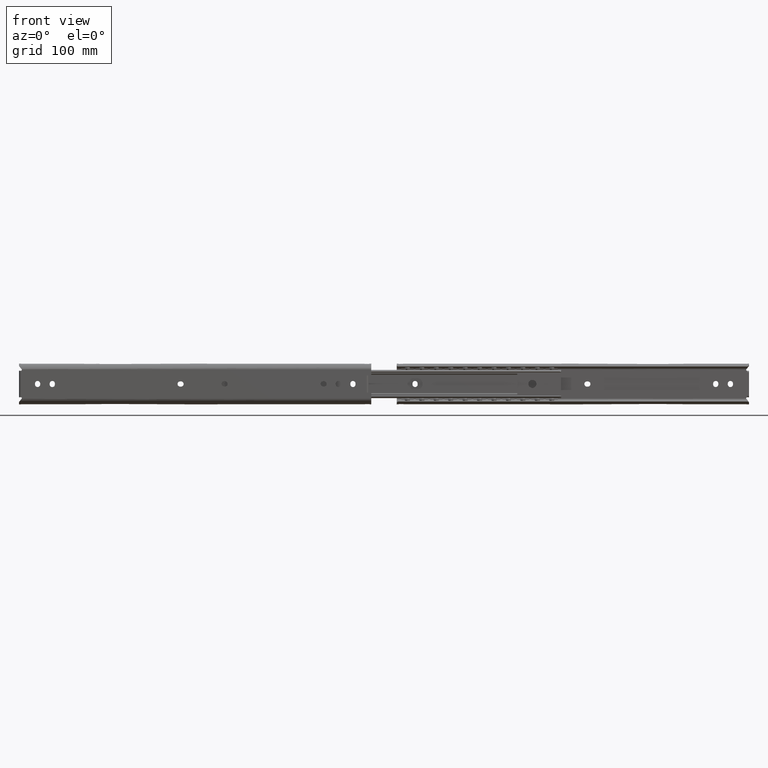
[diagram: clean part render]
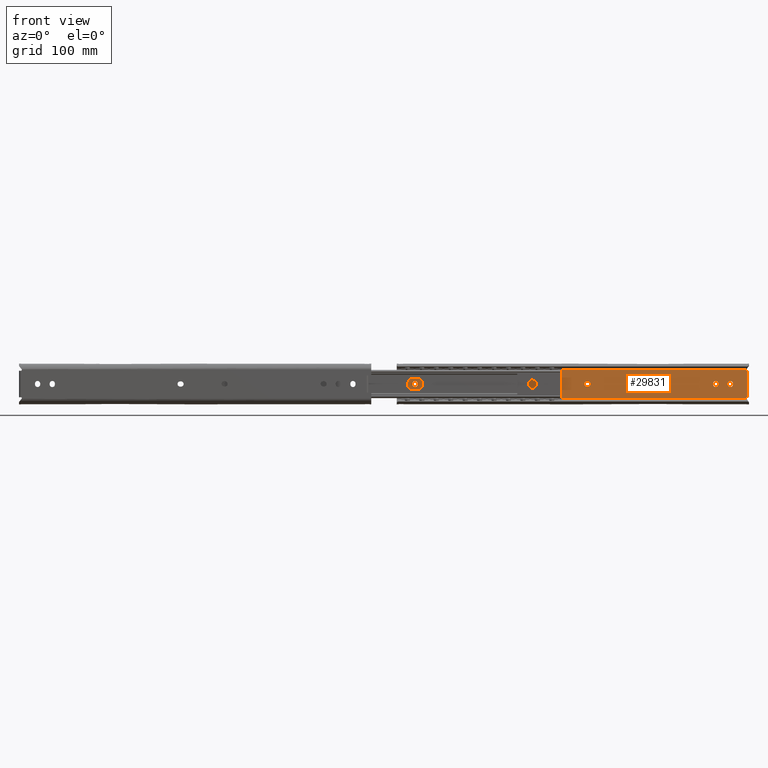
[diagram: same view with one face highlighted and labeled with its STEP entity id]
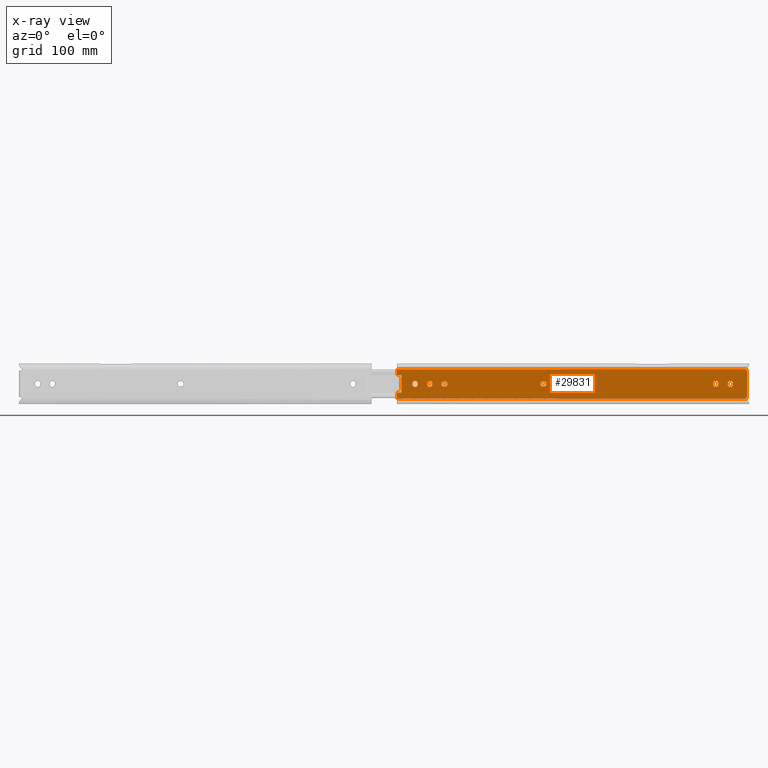
[diagram: x-ray of the same camera — body ghosted, the highlighted face saturated]
A machine part, front view. The second image highlights one B-rep face of the part: STEP entity #29831.
The next image is the same camera in x-ray: the body ghosted, the highlighted face saturated — about 0% of this face is hidden behind the body in this view.
In plain terms, the highlighted face is a freeform B-spline surface patch.
Its self-contained STEP definition (entity closure, byte-faithful):
#26468=CARTESIAN_POINT('',(-263.300000000000010,-1.599999999999795,2.250000000000000));
#26469=VERTEX_POINT('',#26468);
#26475=CARTESIAN_POINT('',(-264.100000000000020,-1.599999999999825,2.250000000000000));
#26476=VERTEX_POINT('',#26475);
#26477=CARTESIAN_POINT('',(-264.100000000000020,-1.599999999999825,2.250000000000000));
#26478=CARTESIAN_POINT('',(-263.300000000000010,-1.599999999999795,2.250000000000000));
#26479=QUASI_UNIFORM_CURVE('',1,(#26477,#26478),.UNSPECIFIED.,.F.,.U.);
#26480=EDGE_CURVE('',#26476,#26469,#26479,.T.);
#26525=CARTESIAN_POINT('',(-263.300000000000010,-1.599999999999825,-2.250000000000000));
#26526=VERTEX_POINT('',#26525);
#26532=CARTESIAN_POINT('',(-263.300000000000010,-1.599999999999825,-2.250000000000000));
#26533=CARTESIAN_POINT('',(-261.050000000000010,-1.599999999999825,-2.250000000000000));
#26534=CARTESIAN_POINT('',(-261.050000000000010,-1.599999999999825,0.0));
#26535=CARTESIAN_POINT('',(-261.050000000000010,-1.599999999999825,2.250000000000000));
#26536=CARTESIAN_POINT('',(-263.300000000000010,-1.599999999999825,2.250000000000000));
#26544=(BOUNDED_CURVE()B_SPLINE_CURVE(2,(#26532,#26533,#26534,#26535,#26536),.UNSPECIFIED.,.F.,.U.)B_SPLINE_CURVE_WITH_KNOTS((3,2,3),(0.0,0.500000000000000,1.0),.UNSPECIFIED.)CURVE()GEOMETRIC_REPRESENTATION_ITEM()RATIONAL_B_SPLINE_CURVE((1.0,0.707106781186547,1.0,0.707106781186547,1.0))REPRESENTATION_ITEM(''));
#26545=EDGE_CURVE('',#26526,#26469,#26544,.T.);
#26563=CARTESIAN_POINT('',(-264.100000000000020,-1.599999999999825,-2.250000000000000));
#26564=VERTEX_POINT('',#26563);
#26570=CARTESIAN_POINT('',(-263.300000000000010,-1.599999999999825,-2.250000000000000));
#26571=CARTESIAN_POINT('',(-264.100000000000020,-1.599999999999825,-2.250000000000000));
#26572=QUASI_UNIFORM_CURVE('',1,(#26570,#26571),.UNSPECIFIED.,.F.,.U.);
#26573=EDGE_CURVE('',#26526,#26564,#26572,.T.);
#26613=CARTESIAN_POINT('',(-264.100000000000020,-1.599999999999825,2.250000000000000));
#26614=CARTESIAN_POINT('',(-266.349999999999970,-1.599999999999825,2.250000000000000));
#26615=CARTESIAN_POINT('',(-266.350000000000020,-1.599999999999825,0.0));
#26616=CARTESIAN_POINT('',(-266.349999999999970,-1.599999999999825,-2.250000000000000));
#26617=CARTESIAN_POINT('',(-264.100000000000020,-1.599999999999825,-2.250000000000000));
#26625=(BOUNDED_CURVE()B_SPLINE_CURVE(2,(#26613,#26614,#26615,#26616,#26617),.UNSPECIFIED.,.F.,.U.)B_SPLINE_CURVE_WITH_KNOTS((3,2,3),(0.0,0.500000000000000,1.0),.UNSPECIFIED.)CURVE()GEOMETRIC_REPRESENTATION_ITEM()RATIONAL_B_SPLINE_CURVE((1.0,0.707106781186547,1.0,0.707106781186547,1.0))REPRESENTATION_ITEM(''));
#26626=EDGE_CURVE('',#26476,#26564,#26625,.T.);
#26669=CARTESIAN_POINT('',(-278.649999999999980,-1.599999999999825,-0.400000000000205));
#26670=VERTEX_POINT('',#26669);
#26676=CARTESIAN_POINT('',(-274.149999999999980,-1.599999999999825,-0.400000000000205));
#26677=VERTEX_POINT('',#26676);
#26678=CARTESIAN_POINT('',(-278.649999999999980,-1.599999999999825,-0.400000000000205));
#26679=CARTESIAN_POINT('',(-278.649999999999920,-1.599999999999825,-2.650000000000204));
#26680=CARTESIAN_POINT('',(-276.399999999999980,-1.599999999999825,-2.650000000000204));
#26681=CARTESIAN_POINT('',(-274.149999999999980,-1.599999999999825,-2.650000000000204));
#26682=CARTESIAN_POINT('',(-274.149999999999980,-1.599999999999825,-0.400000000000205));
#26690=(BOUNDED_CURVE()B_SPLINE_CURVE(2,(#26678,#26679,#26680,#26681,#26682),.UNSPECIFIED.,.F.,.U.)B_SPLINE_CURVE_WITH_KNOTS((3,2,3),(0.0,0.500000000000000,1.0),.UNSPECIFIED.)CURVE()GEOMETRIC_REPRESENTATION_ITEM()RATIONAL_B_SPLINE_CURVE((1.0,0.707106781186547,1.0,0.707106781186547,1.0))REPRESENTATION_ITEM(''));
#26691=EDGE_CURVE('',#26670,#26677,#26690,.T.);
#26714=CARTESIAN_POINT('',(-274.149999999999980,-1.599999999999825,0.399999999999807));
#26715=VERTEX_POINT('',#26714);
#26716=CARTESIAN_POINT('',(-274.149999999999980,-1.599999999999825,0.399999999999807));
#26717=CARTESIAN_POINT('',(-274.149999999999980,-1.599999999999825,-0.400000000000205));
#26718=QUASI_UNIFORM_CURVE('',1,(#26716,#26717),.UNSPECIFIED.,.F.,.U.);
#26719=EDGE_CURVE('',#26715,#26677,#26718,.T.);
#26765=CARTESIAN_POINT('',(-278.649999999999980,-1.599999999999825,0.399999999999807));
#26766=VERTEX_POINT('',#26765);
#26767=CARTESIAN_POINT('',(-274.149999999999980,-1.599999999999825,0.399999999999807));
#26768=CARTESIAN_POINT('',(-274.149999999999980,-1.599999999999825,2.649999999999807));
#26769=CARTESIAN_POINT('',(-276.399999999999980,-1.599999999999825,2.649999999999806));
#26770=CARTESIAN_POINT('',(-278.649999999999920,-1.599999999999825,2.649999999999807));
#26771=CARTESIAN_POINT('',(-278.649999999999980,-1.599999999999825,0.399999999999807));
#26779=(BOUNDED_CURVE()B_SPLINE_CURVE(2,(#26767,#26768,#26769,#26770,#26771),.UNSPECIFIED.,.F.,.U.)B_SPLINE_CURVE_WITH_KNOTS((3,2,3),(0.0,0.500000000000000,1.0),.UNSPECIFIED.)CURVE()GEOMETRIC_REPRESENTATION_ITEM()RATIONAL_B_SPLINE_CURVE((1.0,0.707106781186547,1.0,0.707106781186547,1.0))REPRESENTATION_ITEM(''));
#26780=EDGE_CURVE('',#26715,#26766,#26779,.T.);
#26801=CARTESIAN_POINT('',(-278.649999999999980,-1.599999999999825,-0.400000000000205));
#26802=CARTESIAN_POINT('',(-278.649999999999980,-1.599999999999825,0.399999999999807));
#26803=QUASI_UNIFORM_CURVE('',1,(#26801,#26802),.UNSPECIFIED.,.F.,.U.);
#26804=EDGE_CURVE('',#26670,#26766,#26803,.T.);
#26824=CARTESIAN_POINT('',(-291.350000000000020,-1.599999999999795,0.400000000000007));
#26825=VERTEX_POINT('',#26824);
#26831=CARTESIAN_POINT('',(-291.350000000000020,-1.599999999999825,-0.400000000000091));
#26832=VERTEX_POINT('',#26831);
#26833=CARTESIAN_POINT('',(-291.350000000000020,-1.599999999999795,0.400000000000007));
#26834=CARTESIAN_POINT('',(-291.350000000000020,-1.599999999999825,-0.400000000000091));
#26835=QUASI_UNIFORM_CURVE('',1,(#26833,#26834),.UNSPECIFIED.,.F.,.U.);
#26836=EDGE_CURVE('',#26825,#26832,#26835,.T.);
#26881=CARTESIAN_POINT('',(-286.850000000000020,-1.599999999999825,0.400000000000006));
#26882=VERTEX_POINT('',#26881);
#26888=CARTESIAN_POINT('',(-286.850000000000020,-1.599999999999825,0.400000000000006));
#26889=CARTESIAN_POINT('',(-286.850000000000080,-1.599999999999825,2.650000000000006));
#26890=CARTESIAN_POINT('',(-289.100000000000020,-1.599999999999825,2.650000000000005));
#26891=CARTESIAN_POINT('',(-291.349999999999970,-1.599999999999825,2.650000000000006));
#26892=CARTESIAN_POINT('',(-291.350000000000020,-1.599999999999825,0.400000000000006));
#26900=(BOUNDED_CURVE()B_SPLINE_CURVE(2,(#26888,#26889,#26890,#26891,#26892),.UNSPECIFIED.,.F.,.U.)B_SPLINE_CURVE_WITH_KNOTS((3,2,3),(0.0,0.500000000000000,1.0),.UNSPECIFIED.)CURVE()GEOMETRIC_REPRESENTATION_ITEM()RATIONAL_B_SPLINE_CURVE((1.0,0.707106781186547,1.0,0.707106781186547,1.0))REPRESENTATION_ITEM(''));
#26901=EDGE_CURVE('',#26882,#26825,#26900,.T.);
#26919=CARTESIAN_POINT('',(-286.850000000000020,-1.599999999999825,-0.400000000000091));
#26920=VERTEX_POINT('',#26919);
#26926=CARTESIAN_POINT('',(-286.850000000000020,-1.599999999999825,-0.400000000000091));
#26927=CARTESIAN_POINT('',(-286.850000000000020,-1.599999999999825,0.400000000000006));
#26928=QUASI_UNIFORM_CURVE('',1,(#26926,#26927),.UNSPECIFIED.,.F.,.U.);
#26929=EDGE_CURVE('',#26920,#26882,#26928,.T.);
#26969=CARTESIAN_POINT('',(-291.350000000000020,-1.599999999999825,-0.400000000000091));
#26970=CARTESIAN_POINT('',(-291.349999999999970,-1.599999999999825,-2.650000000000091));
#26971=CARTESIAN_POINT('',(-289.100000000000020,-1.599999999999825,-2.650000000000091));
#26972=CARTESIAN_POINT('',(-286.850000000000080,-1.599999999999825,-2.650000000000091));
#26973=CARTESIAN_POINT('',(-286.850000000000020,-1.599999999999825,-0.400000000000091));
#26981=(BOUNDED_CURVE()B_SPLINE_CURVE(2,(#26969,#26970,#26971,#26972,#26973),.UNSPECIFIED.,.F.,.U.)B_SPLINE_CURVE_WITH_KNOTS((3,2,3),(0.0,0.500000000000000,1.0),.UNSPECIFIED.)CURVE()GEOMETRIC_REPRESENTATION_ITEM()RATIONAL_B_SPLINE_CURVE((1.0,0.707106781186547,1.0,0.707106781186547,1.0))REPRESENTATION_ITEM(''));
#26982=EDGE_CURVE('',#26832,#26920,#26981,.T.);
#26993=CARTESIAN_POINT('',(-177.599999999999990,-1.599999999999825,-2.250000000000200));
#26994=VERTEX_POINT('',#26993);
#27009=CARTESIAN_POINT('',(-178.400000000000010,-1.599999999999795,-2.250000000000200));
#27010=VERTEX_POINT('',#27009);
#27016=CARTESIAN_POINT('',(-177.599999999999990,-1.599999999999825,-2.250000000000200));
#27017=CARTESIAN_POINT('',(-178.400000000000010,-1.599999999999795,-2.250000000000200));
#27018=QUASI_UNIFORM_CURVE('',1,(#27016,#27017),.UNSPECIFIED.,.F.,.U.);
#27019=EDGE_CURVE('',#26994,#27010,#27018,.T.);
#27060=CARTESIAN_POINT('',(-178.400000000000010,-1.599999999999825,2.250000000000000));
#27061=VERTEX_POINT('',#27060);
#27067=CARTESIAN_POINT('',(-178.400000000000010,-1.599999999999825,-2.250000000000000));
#27068=CARTESIAN_POINT('',(-180.650000000000010,-1.599999999999825,-2.250000000000000));
#27069=CARTESIAN_POINT('',(-180.650000000000010,-1.599999999999825,0.0));
#27070=CARTESIAN_POINT('',(-180.650000000000010,-1.599999999999825,2.250000000000000));
#27071=CARTESIAN_POINT('',(-178.400000000000010,-1.599999999999825,2.250000000000000));
#27079=(BOUNDED_CURVE()B_SPLINE_CURVE(2,(#27067,#27068,#27069,#27070,#27071),.UNSPECIFIED.,.F.,.U.)B_SPLINE_CURVE_WITH_KNOTS((3,2,3),(0.0,0.500000000000000,1.0),.UNSPECIFIED.)CURVE()GEOMETRIC_REPRESENTATION_ITEM()RATIONAL_B_SPLINE_CURVE((1.0,0.707106781186547,1.0,0.707106781186547,1.0))REPRESENTATION_ITEM(''));
#27080=EDGE_CURVE('',#27010,#27061,#27079,.T.);
#27098=CARTESIAN_POINT('',(-177.599999999999990,-1.599999999999825,2.250000000000000));
#27099=VERTEX_POINT('',#27098);
#27105=CARTESIAN_POINT('',(-178.400000000000010,-1.599999999999825,2.250000000000000));
#27106=CARTESIAN_POINT('',(-177.599999999999990,-1.599999999999825,2.250000000000000));
#27107=QUASI_UNIFORM_CURVE('',1,(#27105,#27106),.UNSPECIFIED.,.F.,.U.);
#27108=EDGE_CURVE('',#27061,#27099,#27107,.T.);
#27148=CARTESIAN_POINT('',(-177.599999999999990,-1.599999999999825,2.250000000000000));
#27149=CARTESIAN_POINT('',(-175.350000000000020,-1.599999999999825,2.250000000000000));
#27150=CARTESIAN_POINT('',(-175.349999999999990,-1.599999999999825,0.0));
#27151=CARTESIAN_POINT('',(-175.350000000000020,-1.599999999999825,-2.250000000000000));
#27152=CARTESIAN_POINT('',(-177.599999999999990,-1.599999999999825,-2.250000000000000));
#27160=(BOUNDED_CURVE()B_SPLINE_CURVE(2,(#27148,#27149,#27150,#27151,#27152),.UNSPECIFIED.,.F.,.U.)B_SPLINE_CURVE_WITH_KNOTS((3,2,3),(0.0,0.500000000000000,1.0),.UNSPECIFIED.)CURVE()GEOMETRIC_REPRESENTATION_ITEM()RATIONAL_B_SPLINE_CURVE((1.0,0.707106781186547,1.0,0.707106781186547,1.0))REPRESENTATION_ITEM(''));
#27161=EDGE_CURVE('',#27099,#26994,#27160,.T.);
#27171=CARTESIAN_POINT('',(-140.300000000000010,-1.599999999999825,2.250000000000000));
#27172=VERTEX_POINT('',#27171);
#27187=CARTESIAN_POINT('',(-139.500000000000000,-1.599999999999795,2.250000000000000));
#27188=VERTEX_POINT('',#27187);
#27194=CARTESIAN_POINT('',(-140.300000000000010,-1.599999999999825,2.250000000000000));
#27195=CARTESIAN_POINT('',(-139.500000000000000,-1.599999999999795,2.250000000000000));
#27196=QUASI_UNIFORM_CURVE('',1,(#27194,#27195),.UNSPECIFIED.,.F.,.U.);
#27197=EDGE_CURVE('',#27172,#27188,#27196,.T.);
#27238=CARTESIAN_POINT('',(-139.500000000000000,-1.599999999999825,-2.250000000000200));
#27239=VERTEX_POINT('',#27238);
#27245=CARTESIAN_POINT('',(-139.500000000000000,-1.599999999999825,2.250000000000000));
#27246=CARTESIAN_POINT('',(-137.250000000000000,-1.599999999999825,2.250000000000000));
#27247=CARTESIAN_POINT('',(-137.250000000000000,-1.599999999999825,0.0));
#27248=CARTESIAN_POINT('',(-137.250000000000000,-1.599999999999825,-2.250000000000000));
#27249=CARTESIAN_POINT('',(-139.500000000000000,-1.599999999999825,-2.250000000000000));
#27257=(BOUNDED_CURVE()B_SPLINE_CURVE(2,(#27245,#27246,#27247,#27248,#27249),.UNSPECIFIED.,.F.,.U.)B_SPLINE_CURVE_WITH_KNOTS((3,2,3),(0.0,0.500000000000000,1.0),.UNSPECIFIED.)CURVE()GEOMETRIC_REPRESENTATION_ITEM()RATIONAL_B_SPLINE_CURVE((1.0,0.707106781186547,1.0,0.707106781186547,1.0))REPRESENTATION_ITEM(''));
#27258=EDGE_CURVE('',#27188,#27239,#27257,.T.);
#27276=CARTESIAN_POINT('',(-140.300000000000010,-1.599999999999825,-2.250000000000200));
#27277=VERTEX_POINT('',#27276);
#27283=CARTESIAN_POINT('',(-139.500000000000000,-1.599999999999825,-2.250000000000200));
#27284=CARTESIAN_POINT('',(-140.300000000000010,-1.599999999999825,-2.250000000000200));
#27285=QUASI_UNIFORM_CURVE('',1,(#27283,#27284),.UNSPECIFIED.,.F.,.U.);
#27286=EDGE_CURVE('',#27239,#27277,#27285,.T.);
#27326=CARTESIAN_POINT('',(-140.300000000000010,-1.599999999999825,-2.250000000000000));
#27327=CARTESIAN_POINT('',(-142.550000000000100,-1.599999999999825,-2.250000000000000));
#27328=CARTESIAN_POINT('',(-142.550000000000010,-1.599999999999825,0.0));
#27329=CARTESIAN_POINT('',(-142.550000000000100,-1.599999999999825,2.250000000000000));
#27330=CARTESIAN_POINT('',(-140.300000000000010,-1.599999999999825,2.250000000000000));
#27338=(BOUNDED_CURVE()B_SPLINE_CURVE(2,(#27326,#27327,#27328,#27329,#27330),.UNSPECIFIED.,.F.,.U.)B_SPLINE_CURVE_WITH_KNOTS((3,2,3),(0.0,0.500000000000000,1.0),.UNSPECIFIED.)CURVE()GEOMETRIC_REPRESENTATION_ITEM()RATIONAL_B_SPLINE_CURVE((1.0,0.707106781186547,1.0,0.707106781186547,1.0))REPRESENTATION_ITEM(''));
#27339=EDGE_CURVE('',#27277,#27172,#27338,.T.);
#27362=CARTESIAN_POINT('',(-18.350000000000250,-1.599999999999825,0.400000000000006));
#27363=VERTEX_POINT('',#27362);
#27388=CARTESIAN_POINT('',(-13.850000000000239,-1.599999999999825,0.400000000000006));
#27389=VERTEX_POINT('',#27388);
#27395=CARTESIAN_POINT('',(-18.350000000000250,-1.599999999999825,0.400000000000006));
#27396=CARTESIAN_POINT('',(-18.350000000000247,-1.599999999999825,2.650000000000006));
#27397=CARTESIAN_POINT('',(-16.100000000000250,-1.599999999999825,2.650000000000005));
#27398=CARTESIAN_POINT('',(-13.850000000000250,-1.599999999999825,2.650000000000006));
#27399=CARTESIAN_POINT('',(-13.850000000000250,-1.599999999999825,0.400000000000006));
#27407=(BOUNDED_CURVE()B_SPLINE_CURVE(2,(#27395,#27396,#27397,#27398,#27399),.UNSPECIFIED.,.F.,.U.)B_SPLINE_CURVE_WITH_KNOTS((3,2,3),(0.0,0.500000000000000,1.0),.UNSPECIFIED.)CURVE()GEOMETRIC_REPRESENTATION_ITEM()RATIONAL_B_SPLINE_CURVE((1.0,0.707106781186547,1.0,0.707106781186547,1.0))REPRESENTATION_ITEM(''));
#27408=EDGE_CURVE('',#27363,#27389,#27407,.T.);
#27418=CARTESIAN_POINT('',(-18.350000000000250,-1.599999999999825,-0.400000000000091));
#27419=VERTEX_POINT('',#27418);
#27420=CARTESIAN_POINT('',(-18.350000000000250,-1.599999999999825,0.400000000000006));
#27421=CARTESIAN_POINT('',(-18.350000000000250,-1.599999999999825,-0.400000000000091));
#27422=QUASI_UNIFORM_CURVE('',1,(#27420,#27421),.UNSPECIFIED.,.F.,.U.);
#27423=EDGE_CURVE('',#27363,#27419,#27422,.T.);
#27459=CARTESIAN_POINT('',(-13.850000000000239,-1.599999999999825,-0.400000000000091));
#27460=VERTEX_POINT('',#27459);
#27484=CARTESIAN_POINT('',(-13.850000000000250,-1.599999999999825,-0.400000000000091));
#27485=CARTESIAN_POINT('',(-13.850000000000250,-1.599999999999825,-2.650000000000091));
#27486=CARTESIAN_POINT('',(-16.100000000000250,-1.599999999999825,-2.650000000000091));
#27487=CARTESIAN_POINT('',(-18.350000000000247,-1.599999999999825,-2.650000000000091));
#27488=CARTESIAN_POINT('',(-18.350000000000250,-1.599999999999825,-0.400000000000091));
#27496=(BOUNDED_CURVE()B_SPLINE_CURVE(2,(#27484,#27485,#27486,#27487,#27488),.UNSPECIFIED.,.F.,.U.)B_SPLINE_CURVE_WITH_KNOTS((3,2,3),(0.0,0.500000000000000,1.0),.UNSPECIFIED.)CURVE()GEOMETRIC_REPRESENTATION_ITEM()RATIONAL_B_SPLINE_CURVE((1.0,0.707106781186547,1.0,0.707106781186547,1.0))REPRESENTATION_ITEM(''));
#27497=EDGE_CURVE('',#27460,#27419,#27496,.T.);
#27507=CARTESIAN_POINT('',(-13.850000000000239,-1.599999999999825,-0.400000000000091));
#27508=CARTESIAN_POINT('',(-13.850000000000239,-1.599999999999825,0.400000000000006));
#27509=QUASI_UNIFORM_CURVE('',1,(#27507,#27508),.UNSPECIFIED.,.F.,.U.);
#27510=EDGE_CURVE('',#27460,#27389,#27509,.T.);
#27527=CARTESIAN_POINT('',(-26.550000000000001,-1.599999999999825,0.400000000000006));
#27528=VERTEX_POINT('',#27527);
#27543=CARTESIAN_POINT('',(-26.550000000000001,-1.599999999999795,-0.400000000000092));
#27544=VERTEX_POINT('',#27543);
#27550=CARTESIAN_POINT('',(-26.550000000000001,-1.599999999999825,0.400000000000006));
#27551=CARTESIAN_POINT('',(-26.550000000000001,-1.599999999999795,-0.400000000000092));
#27552=QUASI_UNIFORM_CURVE('',1,(#27550,#27551),.UNSPECIFIED.,.F.,.U.);
#27553=EDGE_CURVE('',#27528,#27544,#27552,.T.);
#27594=CARTESIAN_POINT('',(-31.050000000000001,-1.599999999999825,-0.400000000000091));
#27595=VERTEX_POINT('',#27594);
#27601=CARTESIAN_POINT('',(-26.550000000000001,-1.599999999999825,-0.400000000000091));
#27602=CARTESIAN_POINT('',(-26.550000000000008,-1.599999999999825,-2.650000000000091));
#27603=CARTESIAN_POINT('',(-28.800000000000001,-1.599999999999825,-2.650000000000091));
#27604=CARTESIAN_POINT('',(-31.050000000000004,-1.599999999999825,-2.650000000000091));
#27605=CARTESIAN_POINT('',(-31.050000000000001,-1.599999999999825,-0.400000000000091));
#27613=(BOUNDED_CURVE()B_SPLINE_CURVE(2,(#27601,#27602,#27603,#27604,#27605),.UNSPECIFIED.,.F.,.U.)B_SPLINE_CURVE_WITH_KNOTS((3,2,3),(0.0,0.500000000000000,1.0),.UNSPECIFIED.)CURVE()GEOMETRIC_REPRESENTATION_ITEM()RATIONAL_B_SPLINE_CURVE((1.0,0.707106781186547,1.0,0.707106781186547,1.0))REPRESENTATION_ITEM(''));
#27614=EDGE_CURVE('',#27544,#27595,#27613,.T.);
#27632=CARTESIAN_POINT('',(-31.050000000000001,-1.599999999999825,0.400000000000006));
#27633=VERTEX_POINT('',#27632);
#27639=CARTESIAN_POINT('',(-31.050000000000001,-1.599999999999825,-0.400000000000091));
#27640=CARTESIAN_POINT('',(-31.050000000000001,-1.599999999999825,0.400000000000006));
#27641=QUASI_UNIFORM_CURVE('',1,(#27639,#27640),.UNSPECIFIED.,.F.,.U.);
#27642=EDGE_CURVE('',#27595,#27633,#27641,.T.);
#27682=CARTESIAN_POINT('',(-31.050000000000001,-1.599999999999825,0.400000000000006));
#27683=CARTESIAN_POINT('',(-31.050000000000004,-1.599999999999825,2.650000000000006));
#27684=CARTESIAN_POINT('',(-28.800000000000001,-1.599999999999825,2.650000000000005));
#27685=CARTESIAN_POINT('',(-26.550000000000008,-1.599999999999825,2.650000000000006));
#27686=CARTESIAN_POINT('',(-26.550000000000001,-1.599999999999825,0.400000000000006));
#27694=(BOUNDED_CURVE()B_SPLINE_CURVE(2,(#27682,#27683,#27684,#27685,#27686),.UNSPECIFIED.,.F.,.U.)B_SPLINE_CURVE_WITH_KNOTS((3,2,3),(0.0,0.500000000000000,1.0),.UNSPECIFIED.)CURVE()GEOMETRIC_REPRESENTATION_ITEM()RATIONAL_B_SPLINE_CURVE((1.0,0.707106781186547,1.0,0.707106781186547,1.0))REPRESENTATION_ITEM(''));
#27695=EDGE_CURVE('',#27633,#27528,#27694,.T.);
#28151=CARTESIAN_POINT('',(-302.500000000000000,-1.599999999999825,-7.500000000000200));
#28152=VERTEX_POINT('',#28151);
#28168=CARTESIAN_POINT('',(-302.500000000000000,-1.599999999999825,7.500000000000000));
#28169=VERTEX_POINT('',#28168);
#28205=CARTESIAN_POINT('',(-300.899999999999980,-1.599999999999795,-7.500000000000200));
#28206=VERTEX_POINT('',#28205);
#28212=CARTESIAN_POINT('',(-300.899999999999980,-1.599999999999795,7.500000000000000));
#28213=VERTEX_POINT('',#28212);
#28214=CARTESIAN_POINT('',(-300.899999999999980,-1.599999999999795,-7.500000000000200));
#28215=CARTESIAN_POINT('',(-300.899999999999980,-1.599999999999795,7.500000000000000));
#28216=QUASI_UNIFORM_CURVE('',1,(#28214,#28215),.UNSPECIFIED.,.F.,.U.);
#28217=EDGE_CURVE('',#28206,#28213,#28216,.T.);
#28239=CARTESIAN_POINT('',(-300.899999999999980,-1.599999999999795,-7.500000000000200));
#28240=CARTESIAN_POINT('',(-302.500000000000000,-1.599999999999825,-7.500000000000200));
#28241=QUASI_UNIFORM_CURVE('',1,(#28239,#28240),.UNSPECIFIED.,.F.,.U.);
#28242=EDGE_CURVE('',#28206,#28152,#28241,.T.);
#28287=CARTESIAN_POINT('',(-302.500000000000000,-1.599999999999825,7.500000000000000));
#28288=CARTESIAN_POINT('',(-300.899999999999980,-1.599999999999795,7.500000000000000));
#28289=QUASI_UNIFORM_CURVE('',1,(#28287,#28288),.UNSPECIFIED.,.F.,.U.);
#28290=EDGE_CURVE('',#28169,#28213,#28289,.T.);
#28315=CARTESIAN_POINT('',(-305.0,-1.599999999999795,7.500000000000000));
#28316=VERTEX_POINT('',#28315);
#28317=CARTESIAN_POINT('',(-302.500000000000000,-1.599999999999825,7.500000000000000));
#28318=CARTESIAN_POINT('',(-305.0,-1.599999999999795,7.500000000000000));
#28319=QUASI_UNIFORM_CURVE('',1,(#28317,#28318),.UNSPECIFIED.,.F.,.U.);
#28320=EDGE_CURVE('',#28169,#28316,#28319,.T.);
#28354=CARTESIAN_POINT('',(-305.0,-1.599999999999825,-7.500000000000200));
#28355=VERTEX_POINT('',#28354);
#28361=CARTESIAN_POINT('',(-305.0,-1.599999999999825,-7.500000000000200));
#28362=CARTESIAN_POINT('',(-302.500000000000000,-1.599999999999825,-7.500000000000200));
#28363=QUASI_UNIFORM_CURVE('',1,(#28361,#28362),.UNSPECIFIED.,.F.,.U.);
#28364=EDGE_CURVE('',#28355,#28152,#28363,.T.);
#28375=CARTESIAN_POINT('',(-1.600000000000045,-1.599999999999825,-11.500000000000000));
#28376=VERTEX_POINT('',#28375);
#28377=CARTESIAN_POINT('',(-1.600000000000025,-1.599999999999825,11.500000000000000));
#28378=VERTEX_POINT('',#28377);
#28379=CARTESIAN_POINT('',(-1.600000000000045,-1.599999999999825,-11.500000000000000));
#28380=CARTESIAN_POINT('',(-1.600000000000025,-1.599999999999825,11.500000000000000));
#28381=QUASI_UNIFORM_CURVE('',1,(#28379,#28380),.UNSPECIFIED.,.F.,.U.);
#28382=EDGE_CURVE('',#28376,#28378,#28381,.T.);
#28577=CARTESIAN_POINT('',(-2.360134746260215,-1.600000000000045,-12.578916000000000));
#28578=VERTEX_POINT('',#28577);
#28622=CARTESIAN_POINT('',(-2.360134746260215,-1.600000000000045,-12.578916000000000));
#28623=CARTESIAN_POINT('',(-2.501066018639444,-1.599999999999826,-12.184613891433406));
#28624=CARTESIAN_POINT('',(-2.259898584543139,-1.599999999999825,-11.842306945716709));
#28625=CARTESIAN_POINT('',(-2.018731150446826,-1.599999999999826,-11.499999999999995));
#28626=CARTESIAN_POINT('',(-1.600000000000025,-1.599999999999825,-11.500000000000000));
#28634=(BOUNDED_CURVE()B_SPLINE_CURVE(2,(#28622,#28623,#28624,#28625,#28626),.UNSPECIFIED.,.F.,.U.)B_SPLINE_CURVE_WITH_KNOTS((3,2,3),(0.0,0.500000000000000,1.0),.UNSPECIFIED.)CURVE()GEOMETRIC_REPRESENTATION_ITEM()RATIONAL_B_SPLINE_CURVE((1.0,0.887679040060800,1.0,0.887679040060800,1.0))REPRESENTATION_ITEM(''));
#28635=EDGE_CURVE('',#28578,#28376,#28634,.T.);
#29047=CARTESIAN_POINT('',(-2.360134746260220,-1.599999999999825,12.578915999999900));
#29048=VERTEX_POINT('',#29047);
#29056=CARTESIAN_POINT('',(-1.600000000000025,-1.599999999999825,11.500000000000000));
#29057=CARTESIAN_POINT('',(-2.018731150446789,-1.599999999999825,11.499999999999998));
#29058=CARTESIAN_POINT('',(-2.259898584543105,-1.599999999999825,11.842306945716659));
#29059=CARTESIAN_POINT('',(-2.501066018639421,-1.599999999999825,12.184613891433322));
#29060=CARTESIAN_POINT('',(-2.360134746260222,-1.599999999999825,12.578915999999900));
#29068=(BOUNDED_CURVE()B_SPLINE_CURVE(2,(#29056,#29057,#29058,#29059,#29060),.UNSPECIFIED.,.F.,.U.)B_SPLINE_CURVE_WITH_KNOTS((3,2,3),(0.0,0.500000000000000,1.0),.UNSPECIFIED.)CURVE()GEOMETRIC_REPRESENTATION_ITEM()RATIONAL_B_SPLINE_CURVE((1.0,0.887679040060811,1.0,0.887679040060811,1.0))REPRESENTATION_ITEM(''));
#29069=EDGE_CURVE('',#28378,#29048,#29068,.T.);
#29541=CARTESIAN_POINT('',(-305.0,-1.600000000000045,12.578915999999900));
#29542=VERTEX_POINT('',#29541);
#29556=CARTESIAN_POINT('',(-305.0,-1.600000000000045,12.578915999999900));
#29557=CARTESIAN_POINT('',(-2.360134746260220,-1.599999999999825,12.578915999999900));
#29558=QUASI_UNIFORM_CURVE('',1,(#29556,#29557),.UNSPECIFIED.,.F.,.U.);
#29559=EDGE_CURVE('',#29542,#29048,#29558,.T.);
#29633=CARTESIAN_POINT('',(-305.0,-1.599999999999795,-12.578916000000000));
#29634=VERTEX_POINT('',#29633);
#29635=CARTESIAN_POINT('',(-305.0,-1.599999999999795,-12.578916000000000));
#29636=CARTESIAN_POINT('',(-2.360134746260215,-1.600000000000045,-12.578916000000000));
#29637=QUASI_UNIFORM_CURVE('',1,(#29635,#29636),.UNSPECIFIED.,.F.,.U.);
#29638=EDGE_CURVE('',#29634,#28578,#29637,.T.);
#29674=CARTESIAN_POINT('',(-305.0,-1.600000000000045,12.578915999999900));
#29675=CARTESIAN_POINT('',(-305.0,-1.599999999999795,7.500000000000000));
#29676=QUASI_UNIFORM_CURVE('',1,(#29674,#29675),.UNSPECIFIED.,.F.,.U.);
#29677=EDGE_CURVE('',#29542,#28316,#29676,.T.);
#29694=CARTESIAN_POINT('',(-305.0,-1.599999999999825,-7.500000000000200));
#29695=CARTESIAN_POINT('',(-305.0,-1.599999999999795,-12.578916000000000));
#29696=QUASI_UNIFORM_CURVE('',1,(#29694,#29695),.UNSPECIFIED.,.F.,.U.);
#29697=EDGE_CURVE('',#28355,#29634,#29696,.T.);
#29770=CARTESIAN_POINT('',(-320.154829411951990,-1.599999999999795,13.835549333593960));
#29771=CARTESIAN_POINT('',(-320.154829411951990,-1.599999999999795,-13.835548433879881));
#29772=CARTESIAN_POINT('',(13.554837549774060,-1.599999999999795,13.835549333593960));
#29773=CARTESIAN_POINT('',(13.554837549774060,-1.599999999999795,-13.835548433879881));
#29774=B_SPLINE_SURFACE_WITH_KNOTS('',1,1,((#29770,#29772),(#29771,#29773)),.UNSPECIFIED.,.F.,.F.,.U.,(2,2),(2,2),(0.0,27.671097767473839),(0.0,333.709666961725990),.UNSPECIFIED.);
#29775=ORIENTED_EDGE('',*,*,#28320,.F.);
#29776=ORIENTED_EDGE('',*,*,#28290,.T.);
#29777=ORIENTED_EDGE('',*,*,#28217,.F.);
#29778=ORIENTED_EDGE('',*,*,#28242,.T.);
#29779=ORIENTED_EDGE('',*,*,#28364,.F.);
#29780=ORIENTED_EDGE('',*,*,#29697,.T.);
#29781=ORIENTED_EDGE('',*,*,#29638,.T.);
#29782=ORIENTED_EDGE('',*,*,#28635,.T.);
#29783=ORIENTED_EDGE('',*,*,#28382,.T.);
#29784=ORIENTED_EDGE('',*,*,#29069,.T.);
#29785=ORIENTED_EDGE('',*,*,#29559,.F.);
#29786=ORIENTED_EDGE('',*,*,#29677,.T.);
#29787=EDGE_LOOP('',(#29775,#29776,#29777,#29778,#29779,#29780,#29781,#29782,#29783,#29784,#29785,#29786));
#29788=FACE_OUTER_BOUND('',#29787,.T.);
#29789=ORIENTED_EDGE('',*,*,#27286,.T.);
#29790=ORIENTED_EDGE('',*,*,#27339,.T.);
#29791=ORIENTED_EDGE('',*,*,#27197,.T.);
#29792=ORIENTED_EDGE('',*,*,#27258,.T.);
#29793=EDGE_LOOP('',(#29789,#29790,#29791,#29792));
#29794=FACE_BOUND('',#29793,.T.);
#29795=ORIENTED_EDGE('',*,*,#27510,.F.);
#29796=ORIENTED_EDGE('',*,*,#27497,.T.);
#29797=ORIENTED_EDGE('',*,*,#27423,.F.);
#29798=ORIENTED_EDGE('',*,*,#27408,.T.);
#29799=EDGE_LOOP('',(#29795,#29796,#29797,#29798));
#29800=FACE_BOUND('',#29799,.T.);
#29801=ORIENTED_EDGE('',*,*,#26929,.F.);
#29802=ORIENTED_EDGE('',*,*,#26982,.F.);
#29803=ORIENTED_EDGE('',*,*,#26836,.F.);
#29804=ORIENTED_EDGE('',*,*,#26901,.F.);
#29805=EDGE_LOOP('',(#29801,#29802,#29803,#29804));
#29806=FACE_BOUND('',#29805,.T.);
#29807=ORIENTED_EDGE('',*,*,#27642,.T.);
#29808=ORIENTED_EDGE('',*,*,#27695,.T.);
#29809=ORIENTED_EDGE('',*,*,#27553,.T.);
#29810=ORIENTED_EDGE('',*,*,#27614,.T.);
#29811=EDGE_LOOP('',(#29807,#29808,#29809,#29810));
#29812=FACE_BOUND('',#29811,.T.);
#29813=ORIENTED_EDGE('',*,*,#27108,.T.);
#29814=ORIENTED_EDGE('',*,*,#27161,.T.);
#29815=ORIENTED_EDGE('',*,*,#27019,.T.);
#29816=ORIENTED_EDGE('',*,*,#27080,.T.);
#29817=EDGE_LOOP('',(#29813,#29814,#29815,#29816));
#29818=FACE_BOUND('',#29817,.T.);
#29819=ORIENTED_EDGE('',*,*,#26804,.T.);
#29820=ORIENTED_EDGE('',*,*,#26780,.F.);
#29821=ORIENTED_EDGE('',*,*,#26719,.T.);
#29822=ORIENTED_EDGE('',*,*,#26691,.F.);
#29823=EDGE_LOOP('',(#29819,#29820,#29821,#29822));
#29824=FACE_BOUND('',#29823,.T.);
#29825=ORIENTED_EDGE('',*,*,#26573,.T.);
#29826=ORIENTED_EDGE('',*,*,#26626,.F.);
#29827=ORIENTED_EDGE('',*,*,#26480,.T.);
#29828=ORIENTED_EDGE('',*,*,#26545,.F.);
#29829=EDGE_LOOP('',(#29825,#29826,#29827,#29828));
#29830=FACE_BOUND('',#29829,.T.);
#29831=ADVANCED_FACE('',(#29788,#29794,#29800,#29806,#29812,#29818,#29824,#29830),#29774,.T.);